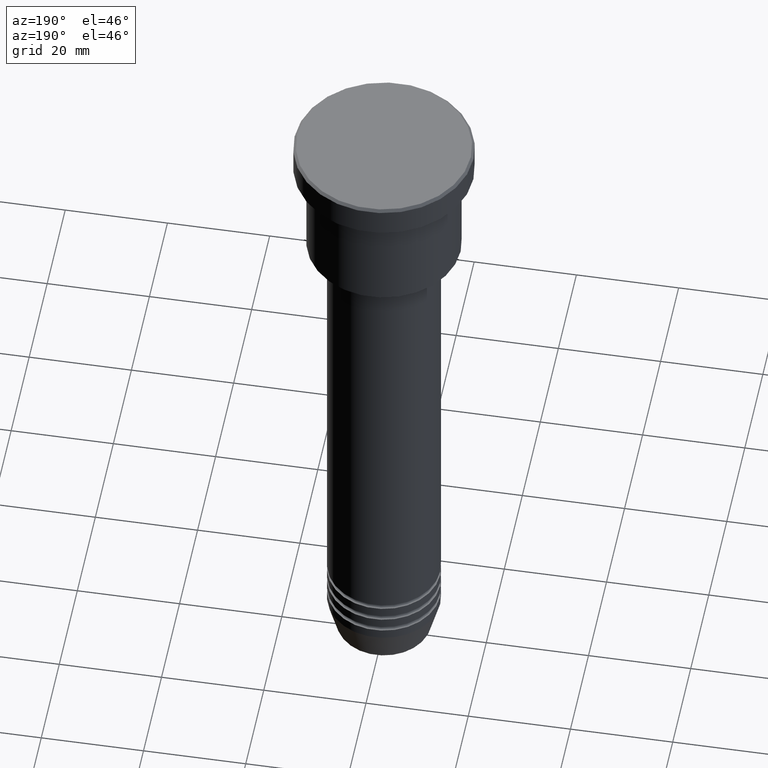
[diagram: clean part render]
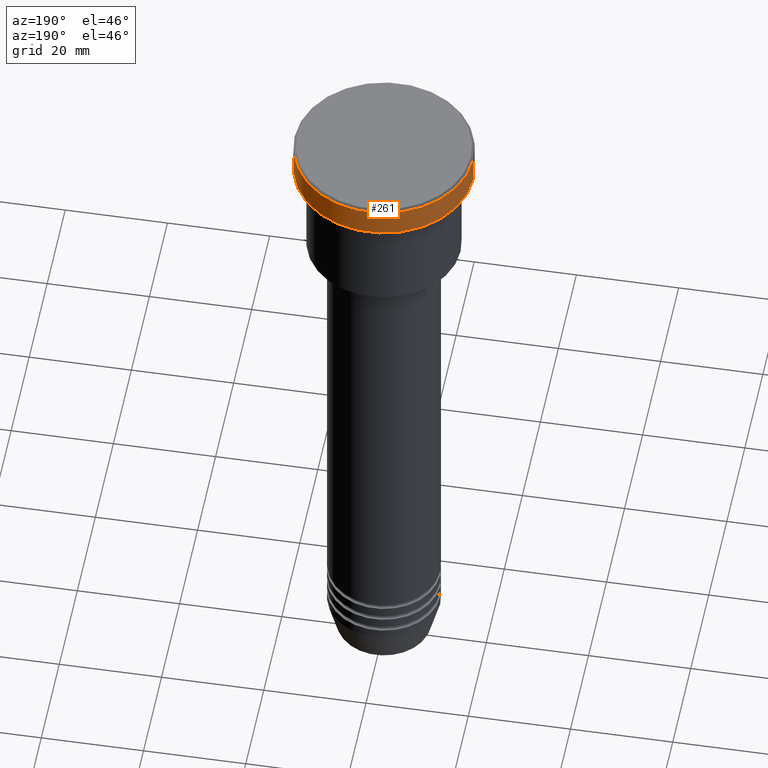
[diagram: same view with one face highlighted and labeled with its STEP entity id]
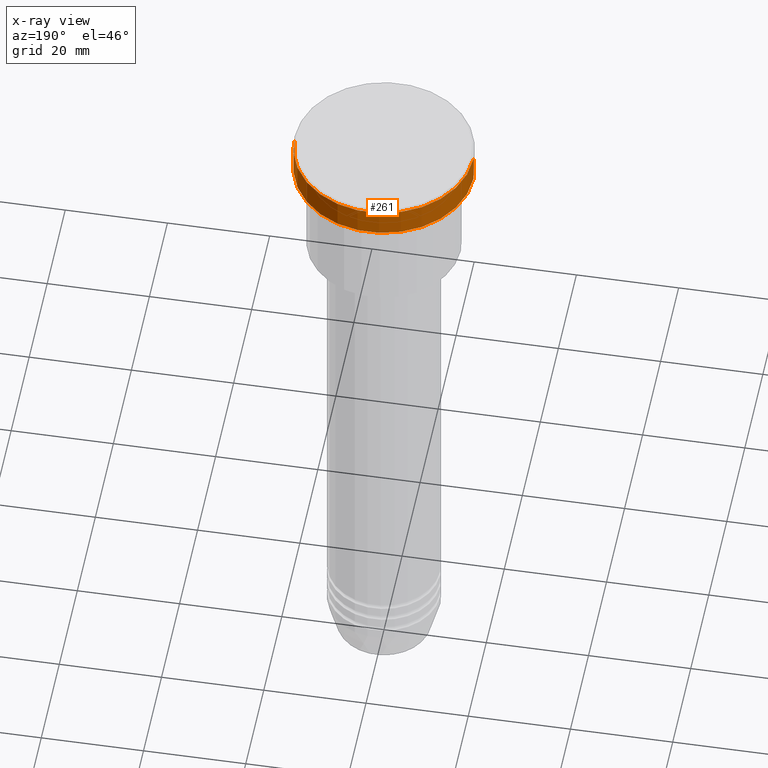
[diagram: x-ray of the same camera — body ghosted, the highlighted face saturated]
A machine part, auxiliary view. The second image highlights one B-rep face of the part: STEP entity #261.
The next image is the same camera in x-ray: the body ghosted, the highlighted face saturated — about 0% of this face is hidden behind the body in this view.
In plain terms, the highlighted cylindrical surface (partial cylindrical patch) has radius 17.5 mm, axis along (-0, -0, 1).
Its self-contained STEP definition (entity closure, byte-faithful):
#4 = VECTOR ( 'NONE', #820, 1000.000000000000000 ) ;
#56 = ORIENTED_EDGE ( 'NONE', *, *, #211, .F. ) ;
#211 = EDGE_CURVE ( 'NONE', #482, #594, #734, .T. ) ;
#228 = CARTESIAN_POINT ( 'NONE',  ( 0.000000000000000000, 0.000000000000000000, -0.4999999999999864553 ) ) ;
#261 = ADVANCED_FACE ( 'NONE', ( #1083 ), #739, .T. ) ;
#339 = DIRECTION ( 'NONE',  ( 1.000000000000000000, 0.000000000000000000, 0.000000000000000000 ) ) ;
#388 = ORIENTED_EDGE ( 'NONE', *, *, #1071, .T. ) ;
#393 = CARTESIAN_POINT ( 'NONE',  ( -17.50000000000000000, 2.143131898507868248E-15, -0.4999999999999864553 ) ) ;
#437 = CARTESIAN_POINT ( 'NONE',  ( 0.000000000000000000, 0.000000000000000000, -5.999999999999995559 ) ) ;
#482 = VERTEX_POINT ( 'NONE', #777 ) ;
#536 = DIRECTION ( 'NONE',  ( -0.000000000000000000, -0.000000000000000000, 1.000000000000000000 ) ) ;
#594 = VERTEX_POINT ( 'NONE', #1162 ) ;
#595 = DIRECTION ( 'NONE',  ( 1.000000000000000000, 0.000000000000000000, 0.000000000000000000 ) ) ;
#668 = ORIENTED_EDGE ( 'NONE', *, *, #759, .T. ) ;
#721 = CARTESIAN_POINT ( 'NONE',  ( -17.50000000000000000, 2.143131898507868248E-15, 0.000000000000000000 ) ) ;
#722 = CARTESIAN_POINT ( 'NONE',  ( 17.50000000000000000, 0.000000000000000000, 0.000000000000000000 ) ) ;
#734 = LINE ( 'NONE', #722, #4 ) ;
#739 = CYLINDRICAL_SURFACE ( 'NONE', #805, 17.50000000000000000 ) ;
#759 = EDGE_CURVE ( 'NONE', #785, #868, #989, .T. ) ;
#768 = AXIS2_PLACEMENT_3D ( 'NONE', #228, #1131, #595 ) ;
#769 = EDGE_LOOP ( 'NONE', ( #1154, #668, #388, #56 ) ) ;
#777 = CARTESIAN_POINT ( 'NONE',  ( 17.50000000000000000, 0.000000000000000000, -5.999999999999995559 ) ) ;
#785 = VERTEX_POINT ( 'NONE', #1119 ) ;
#789 = AXIS2_PLACEMENT_3D ( 'NONE', #437, #536, #339 ) ;
#805 = AXIS2_PLACEMENT_3D ( 'NONE', #1172, #1095, #826 ) ;
#820 = DIRECTION ( 'NONE',  ( -0.000000000000000000, -0.000000000000000000, 1.000000000000000000 ) ) ;
#826 = DIRECTION ( 'NONE',  ( 1.000000000000000000, 0.000000000000000000, 0.000000000000000000 ) ) ;
#868 = VERTEX_POINT ( 'NONE', #393 ) ;
#882 = VECTOR ( 'NONE', #1082, 1000.000000000000000 ) ;
#982 = CIRCLE ( 'NONE', #789, 17.50000000000000000 ) ;
#989 = LINE ( 'NONE', #721, #882 ) ;
#1000 = CIRCLE ( 'NONE', #768, 17.50000000000000000 ) ;
#1071 = EDGE_CURVE ( 'NONE', #868, #594, #1000, .T. ) ;
#1082 = DIRECTION ( 'NONE',  ( -0.000000000000000000, -0.000000000000000000, 1.000000000000000000 ) ) ;
#1083 = FACE_OUTER_BOUND ( 'NONE', #769, .T. ) ;
#1095 = DIRECTION ( 'NONE',  ( -0.000000000000000000, -0.000000000000000000, 1.000000000000000000 ) ) ;
#1106 = EDGE_CURVE ( 'NONE', #482, #785, #982, .T. ) ;
#1119 = CARTESIAN_POINT ( 'NONE',  ( -17.50000000000000000, 2.143131898507868248E-15, -5.999999999999995559 ) ) ;
#1131 = DIRECTION ( 'NONE',  ( 0.000000000000000000, 0.000000000000000000, -1.000000000000000000 ) ) ;
#1154 = ORIENTED_EDGE ( 'NONE', *, *, #1106, .T. ) ;
#1162 = CARTESIAN_POINT ( 'NONE',  ( 17.50000000000000000, 0.000000000000000000, -0.4999999999999864553 ) ) ;
#1172 = CARTESIAN_POINT ( 'NONE',  ( 0.000000000000000000, 0.000000000000000000, 0.000000000000000000 ) ) ;